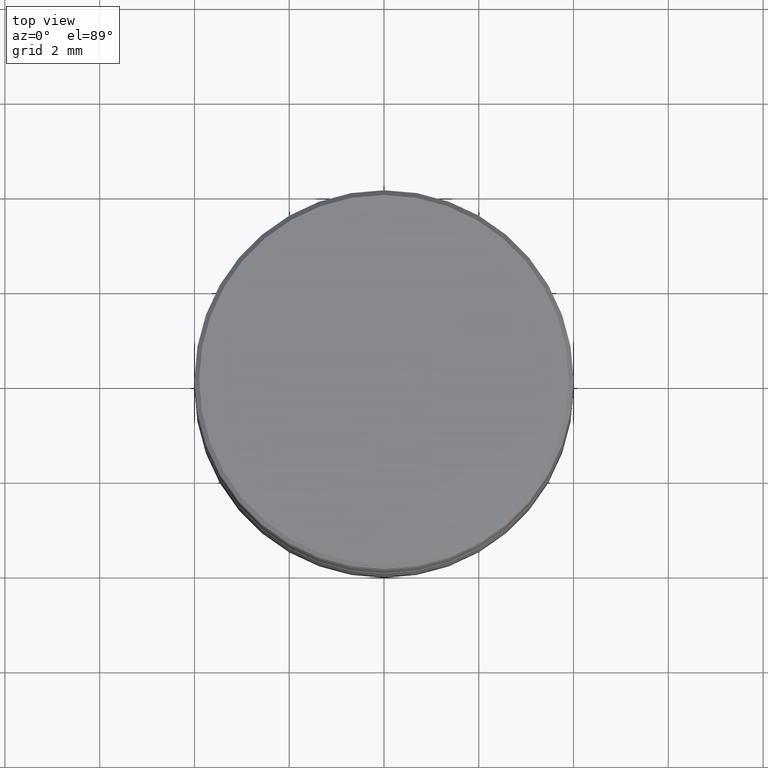
[diagram: clean part render]
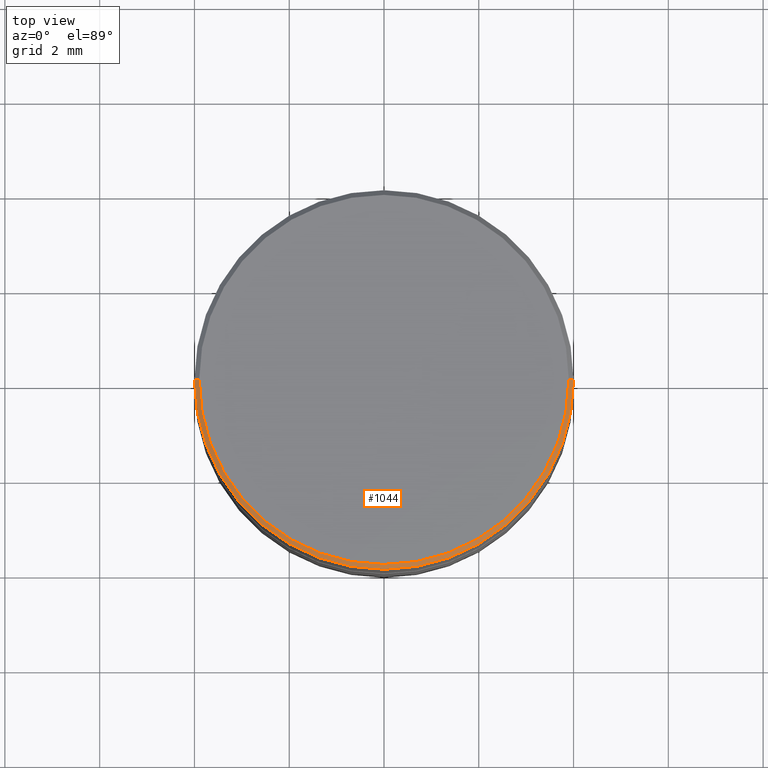
[diagram: same view with one face highlighted and labeled with its STEP entity id]
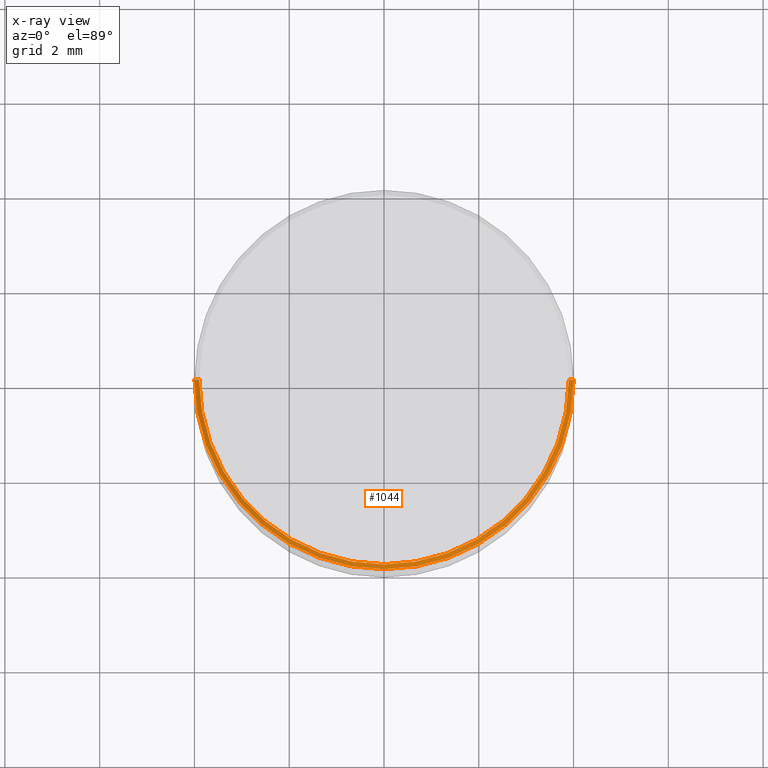
[diagram: x-ray of the same camera — body ghosted, the highlighted face saturated]
A machine part, top view. The second image highlights one B-rep face of the part: STEP entity #1044.
The next image is the same camera in x-ray: the body ghosted, the highlighted face saturated — about 0% of this face is hidden behind the body in this view.
In plain terms, the highlighted conical surface has half-angle 45 deg.
Its self-contained STEP definition (entity closure, byte-faithful):
#36 = EDGE_CURVE ( 'NONE', #608, #158, #463, .T. ) ;
#40 = CARTESIAN_POINT ( 'NONE',  ( 0.000000000000000000, 0.000000000000000000, 0.000000000000000000 ) ) ;
#43 = EDGE_CURVE ( 'NONE', #1032, #511, #996, .T. ) ;
#66 = ORIENTED_EDGE ( 'NONE', *, *, #265, .F. ) ;
#117 = CARTESIAN_POINT ( 'NONE',  ( 4.000000000000000000, 0.000000000000000000, -0.09999999999999766020 ) ) ;
#143 = DIRECTION ( 'NONE',  ( 0.000000000000000000, 0.000000000000000000, -1.000000000000000000 ) ) ;
#158 = VERTEX_POINT ( 'NONE', #920 ) ;
#226 = CARTESIAN_POINT ( 'NONE',  ( 0.000000000000000000, 0.000000000000000000, 0.000000000000000000 ) ) ;
#265 = EDGE_CURVE ( 'NONE', #158, #1032, #1134, .T. ) ;
#306 = DIRECTION ( 'NONE',  ( 0.000000000000000000, 0.000000000000000000, -1.000000000000000000 ) ) ;
#318 = EDGE_CURVE ( 'NONE', #608, #511, #456, .T. ) ;
#349 = VECTOR ( 'NONE', #1069, 1000.000000000000114 ) ;
#374 = ORIENTED_EDGE ( 'NONE', *, *, #318, .T. ) ;
#387 = VECTOR ( 'NONE', #818, 1000.000000000000114 ) ;
#408 = DIRECTION ( 'NONE',  ( 1.000000000000000000, 0.000000000000000000, 0.000000000000000000 ) ) ;
#456 = LINE ( 'NONE', #793, #349 ) ;
#463 = CIRCLE ( 'NONE', #1104, 3.900000000000002576 ) ;
#501 = AXIS2_PLACEMENT_3D ( 'NONE', #958, #143, #870 ) ;
#511 = VERTEX_POINT ( 'NONE', #1024 ) ;
#522 = ORIENTED_EDGE ( 'NONE', *, *, #43, .F. ) ;
#606 = AXIS2_PLACEMENT_3D ( 'NONE', #40, #306, #679 ) ;
#608 = VERTEX_POINT ( 'NONE', #812 ) ;
#645 = CARTESIAN_POINT ( 'NONE',  ( 3.900000000000002576, 4.776122516674681230E-16, 0.000000000000000000 ) ) ;
#679 = DIRECTION ( 'NONE',  ( -1.000000000000000000, 0.000000000000000000, 0.000000000000000000 ) ) ;
#706 = DIRECTION ( 'NONE',  ( -0.000000000000000000, -0.000000000000000000, 1.000000000000000000 ) ) ;
#731 = CONICAL_SURFACE ( 'NONE', #606, 3.900000000000002576, 0.7853981633974482790 ) ;
#793 = CARTESIAN_POINT ( 'NONE',  ( -3.900000000000002576, 0.000000000000000000, 0.000000000000000000 ) ) ;
#812 = CARTESIAN_POINT ( 'NONE',  ( -3.900000000000002576, 0.000000000000000000, 0.000000000000000000 ) ) ;
#818 = DIRECTION ( 'NONE',  ( 0.7071067811865474617, 8.659560562354932858E-17, -0.7071067811865474617 ) ) ;
#870 = DIRECTION ( 'NONE',  ( 1.000000000000000000, 0.000000000000000000, 0.000000000000000000 ) ) ;
#920 = CARTESIAN_POINT ( 'NONE',  ( 3.900000000000002576, 4.837354856632047030E-16, 0.000000000000000000 ) ) ;
#936 = FACE_OUTER_BOUND ( 'NONE', #1115, .T. ) ;
#958 = CARTESIAN_POINT ( 'NONE',  ( 0.000000000000000000, 0.000000000000000000, -0.09999999999999766020 ) ) ;
#996 = CIRCLE ( 'NONE', #501, 4.000000000000000000 ) ;
#1024 = CARTESIAN_POINT ( 'NONE',  ( -4.000000000000000000, 4.898587196589412829E-16, -0.09999999999999766020 ) ) ;
#1032 = VERTEX_POINT ( 'NONE', #117 ) ;
#1044 = ADVANCED_FACE ( 'NONE', ( #936 ), #731, .T. ) ;
#1069 = DIRECTION ( 'NONE',  ( -0.7071067811865474617, 0.000000000000000000, -0.7071067811865474617 ) ) ;
#1104 = AXIS2_PLACEMENT_3D ( 'NONE', #226, #706, #408 ) ;
#1115 = EDGE_LOOP ( 'NONE', ( #66, #1129, #374, #522 ) ) ;
#1129 = ORIENTED_EDGE ( 'NONE', *, *, #36, .F. ) ;
#1134 = LINE ( 'NONE', #645, #387 ) ;